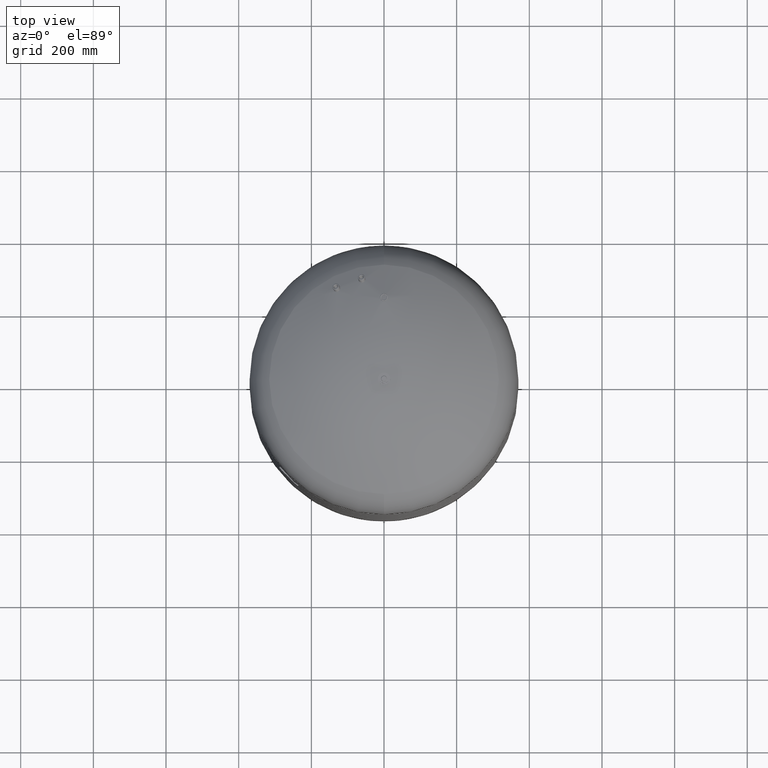
[diagram: clean part render]
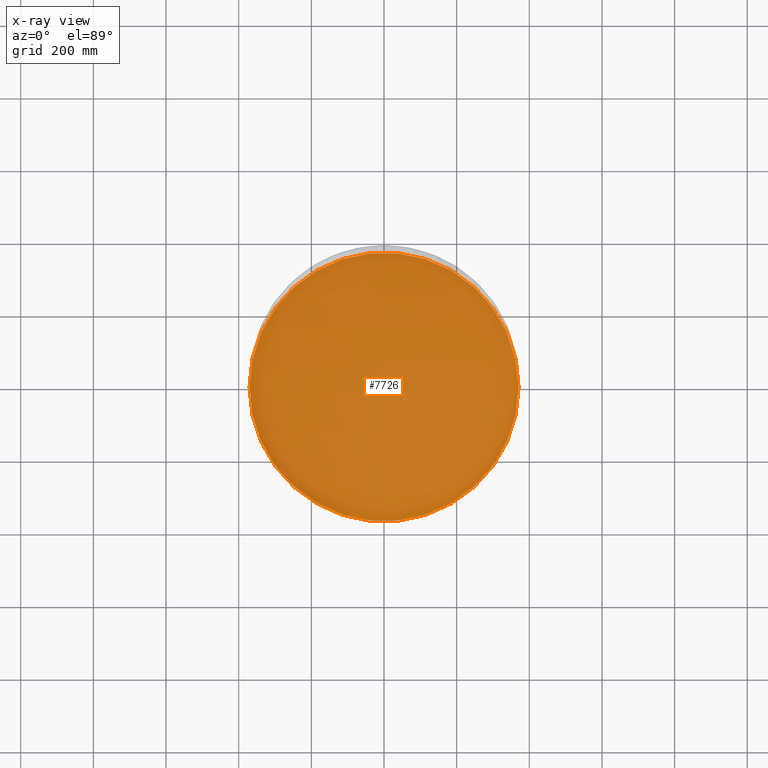
[diagram: x-ray — body ghosted, one internal face saturated and labeled with its STEP entity id]
A machine part, top view, then the same camera in x-ray: the body is ghosted and one INTERNAL B-rep face — a face not visible from any outside direction — is saturated and labeled: STEP entity #7726.
In plain terms, the highlighted planar face has unit normal (0, 0, 1).
Its self-contained STEP definition (entity closure, byte-faithful):
#7524=CARTESIAN_POINT('',(-370.000000000000060,-3.471874E-014,368.999999999999940));
#7525=VERTEX_POINT('',#7524);
#7534=CARTESIAN_POINT('',(370.0,1.059170E-014,368.999999999999940));
#7535=VERTEX_POINT('',#7534);
#7536=CARTESIAN_POINT('',(0.0,-3.471874E-014,368.999999999999940));
#7537=DIRECTION('',(0.0,0.0,1.0));
#7538=DIRECTION('',(-1.0,0.0,0.0));
#7539=AXIS2_PLACEMENT_3D('',#7536,#7537,#7538);
#7540=CIRCLE('',#7539,370.000000000000060);
#7541=EDGE_CURVE('',#7535,#7525,#7540,.T.);
#7707=CARTESIAN_POINT('',(0.0,-3.471874E-014,368.999999999999940));
#7708=DIRECTION('',(0.0,0.0,1.0));
#7709=DIRECTION('',(-1.0,0.0,0.0));
#7710=AXIS2_PLACEMENT_3D('',#7707,#7708,#7709);
#7711=CIRCLE('',#7710,370.000000000000060);
#7712=EDGE_CURVE('',#7525,#7535,#7711,.T.);
#7717=CARTESIAN_POINT('',(-185.000000000000030,-3.471874E-014,369.0));
#7718=DIRECTION('',(0.0,0.0,1.0));
#7719=DIRECTION('',(0.0,-1.0,0.0));
#7720=AXIS2_PLACEMENT_3D('',#7717,#7718,#7719);
#7721=PLANE('',#7720);
#7722=ORIENTED_EDGE('',*,*,#7712,.T.);
#7723=ORIENTED_EDGE('',*,*,#7541,.T.);
#7724=EDGE_LOOP('',(#7722,#7723));
#7725=FACE_OUTER_BOUND('',#7724,.T.);
#7726=ADVANCED_FACE('',(#7725),#7721,.T.);